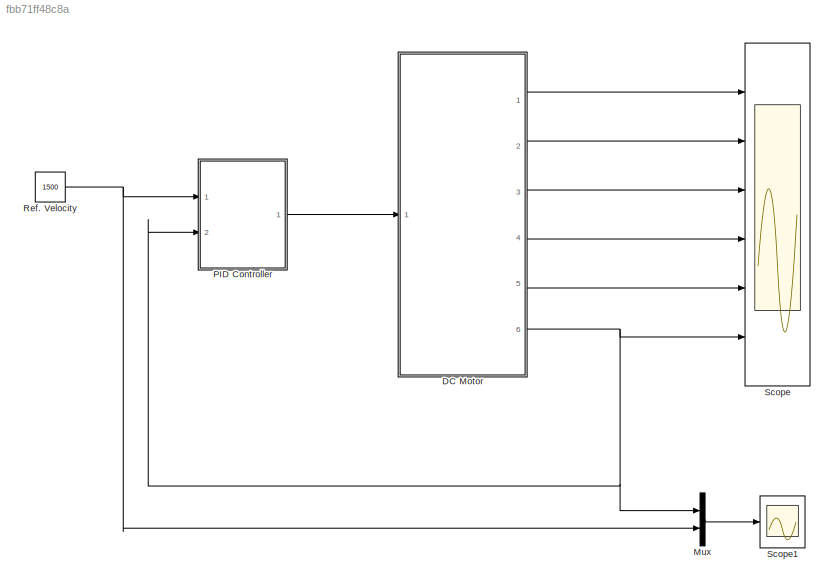
MODEL slx_fbb71ff48c8a
KIND model
CONFIG AbsTol = auto
CONFIG FixedStep = auto
CONFIG MaxStep = auto
CONFIG MinStep = auto
CONFIG RelTol = 1e-3
CONFIG SampleTimeConstraint = Unconstrained
CONFIG Solver = ode45
CONFIG SolverMode = Auto
CONFIG SolverName = ode45
CONFIG StartTime = 0.0
CONFIG StopTime = 2
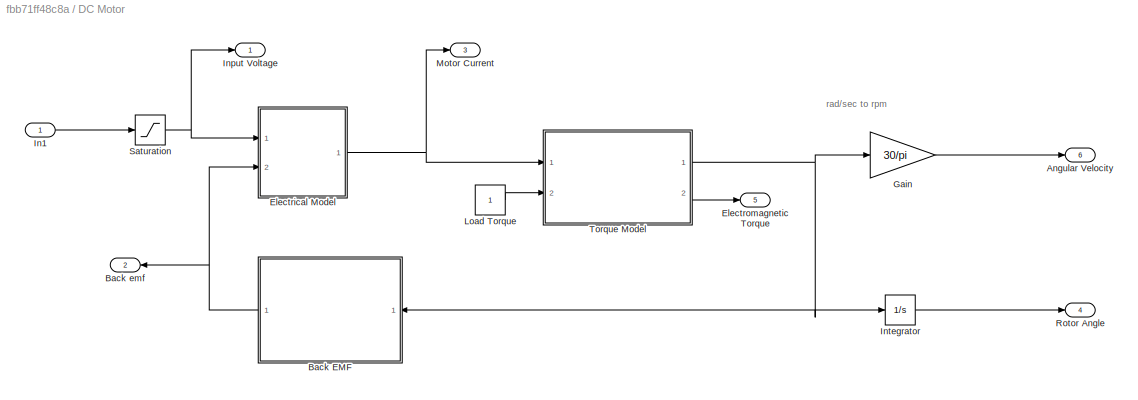
BLOCK [SubSystem] DC Motor
  Ports = [1, 6]
  RequestExecContextInheritance = off
BLOCK [Outport] DC Motor/Angular Velocity
  IconDisplay = Port number
  Port = 6
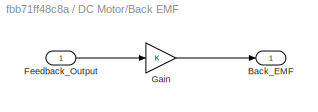
BLOCK [SubSystem] DC Motor/Back EMF
  Ports = [1, 1]
  RequestExecContextInheritance = off
BLOCK [Outport] DC Motor/Back EMF/Back_EMF
  IconDisplay = Port number
BLOCK [Inport] DC Motor/Back EMF/Feedback_Output
  IconDisplay = Port number
BLOCK [Gain] DC Motor/Back EMF/Gain
  Gain = K
  OutDataTypeStr = Inherit: Inherit via internal rule
  ParamDataTypeStr = Inherit: Inherit via internal rule
  SaturateOnIntegerOverflow = off
BLOCK [Outport] DC Motor/Back emf
  IconDisplay = Port number
  Port = 2
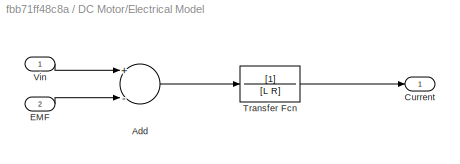
BLOCK [SubSystem] DC Motor/Electrical Model
  Ports = [2, 1]
  RequestExecContextInheritance = off
BLOCK [Sum] DC Motor/Electrical Model/Add
  InputSameDT = off
  Inputs = +-
  OutDataTypeStr = Inherit: Inherit via internal rule
  Ports = [2, 1]
  SaturateOnIntegerOverflow = off
BLOCK [Outport] DC Motor/Electrical Model/Current
  IconDisplay = Port number
BLOCK [Inport] DC Motor/Electrical Model/EMF
  IconDisplay = Port number
  Port = 2
BLOCK [TransferFcn] DC Motor/Electrical Model/Transfer Fcn
  Denominator = [L R]
BLOCK [Inport] DC Motor/Electrical Model/Vin
  IconDisplay = Port number
BLOCK [Outport] DC Motor/Electromagnetic Torque
  IconDisplay = Port number
  Port = 5
BLOCK [Gain] DC Motor/Gain
  Gain = 30/pi
  OutDataTypeStr = Inherit: Inherit via internal rule
  ParamDataTypeStr = Inherit: Inherit via internal rule
  SaturateOnIntegerOverflow = off
BLOCK [Inport] DC Motor/In1
  IconDisplay = Port number
BLOCK [Outport] DC Motor/Input Voltage
  IconDisplay = Port number
BLOCK [Integrator] DC Motor/Integrator
  Ports = [1, 1]
BLOCK [Constant] DC Motor/Load Torque
BLOCK [Outport] DC Motor/Motor Current
  IconDisplay = Port number
  Port = 3
BLOCK [Outport] DC Motor/Rotor Angle
  IconDisplay = Port number
  Port = 4
BLOCK [Saturate] DC Motor/Saturation
  InputPortMap = u0
  LowerLimit = -200
  Ports = [1, 1]
  UpperLimit = 200
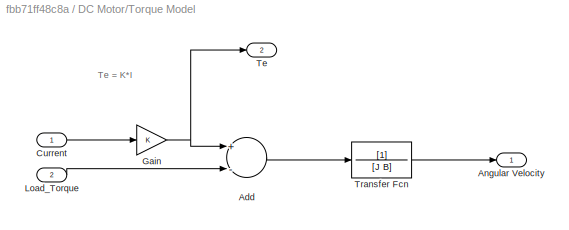
BLOCK [SubSystem] DC Motor/Torque Model
  Ports = [2, 2]
  RequestExecContextInheritance = off
BLOCK [Sum] DC Motor/Torque Model/Add
  InputSameDT = off
  Inputs = +-
  OutDataTypeStr = Inherit: Inherit via internal rule
  Ports = [2, 1]
  SaturateOnIntegerOverflow = off
BLOCK [Outport] DC Motor/Torque Model/Angular Velocity
  IconDisplay = Port number
BLOCK [Inport] DC Motor/Torque Model/Current
  IconDisplay = Port number
BLOCK [Gain] DC Motor/Torque Model/Gain
  Gain = K
  OutDataTypeStr = Inherit: Inherit via internal rule
  ParamDataTypeStr = Inherit: Inherit via internal rule
  SaturateOnIntegerOverflow = off
BLOCK [Inport] DC Motor/Torque Model/Load_Torque
  IconDisplay = Port number
  Port = 2
BLOCK [Outport] DC Motor/Torque Model/Te
  IconDisplay = Port number
  Port = 2
BLOCK [TransferFcn] DC Motor/Torque Model/Transfer Fcn
  Denominator = [J B]
BLOCK [Mux] Mux
  DisplayOption = bar
  Inputs = 2
  Ports = [2, 1]
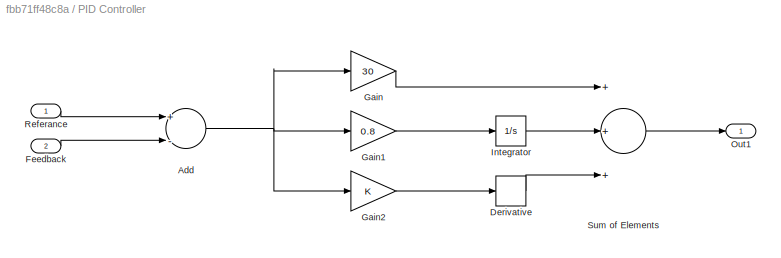
BLOCK [SubSystem] PID Controller
  Ports = [2, 1]
  RequestExecContextInheritance = off
BLOCK [Sum] PID Controller/Add
  InputSameDT = off
  Inputs = +-
  OutDataTypeStr = Inherit: Inherit via internal rule
  Ports = [2, 1]
  SaturateOnIntegerOverflow = off
BLOCK [Derivative] PID Controller/Derivative
BLOCK [Inport] PID Controller/Feedback
  IconDisplay = Port number
  Port = 2
BLOCK [Gain] PID Controller/Gain
  Gain = 30
  OutDataTypeStr = Inherit: Inherit via internal rule
  ParamDataTypeStr = Inherit: Inherit via internal rule
  SaturateOnIntegerOverflow = off
BLOCK [Gain] PID Controller/Gain1
  Gain = 0.8
  OutDataTypeStr = Inherit: Inherit via internal rule
  ParamDataTypeStr = Inherit: Inherit via internal rule
  SaturateOnIntegerOverflow = off
BLOCK [Gain] PID Controller/Gain2
  OutDataTypeStr = Inherit: Inherit via internal rule
  ParamDataTypeStr = Inherit: Inherit via internal rule
  SaturateOnIntegerOverflow = off
BLOCK [Integrator] PID Controller/Integrator
  Ports = [1, 1]
BLOCK [Outport] PID Controller/Out1
  IconDisplay = Port number
BLOCK [Inport] PID Controller/Referance
  IconDisplay = Port number
BLOCK [Sum] PID Controller/Sum of Elements
  InputSameDT = off
  Inputs = +++
  OutDataTypeStr = Inherit: Inherit via internal rule
  Ports = [3, 1]
  SaturateOnIntegerOverflow = off
BLOCK [Constant] Ref. Velocity
  Value = 1500
BLOCK [Scope] Scope
  Floating = off
  LimitDataPoints = off
  NumInputPorts = 6
  Ports = [6]
  YMax = 5~5~5~5~5~5
  YMin = -5~-5~-5~-5~-5~-5
BLOCK [Scope] Scope1
  Floating = off
  LimitDataPoints = off
  NumInputPorts = 1
  Ports = [1]
  SaveName = ScopeData1
ANNOTATION DC Motor: rad/sec to rpm
ANNOTATION DC Motor/Torque Model: Te = K*I
LINE DC Motor/Back EMF/Feedback_Output:1 -> DC Motor/Back EMF/Gain:1
LINE DC Motor/Back EMF/Gain:1 -> DC Motor/Back EMF/Back_EMF:1
NET DC Motor/Back EMF:1 -> DC Motor/Back emf:1, DC Motor/Electrical Model:2
LINE DC Motor/Electrical Model/Add:1 -> DC Motor/Electrical Model/Transfer Fcn:1
LINE DC Motor/Electrical Model/EMF:1 -> DC Motor/Electrical Model/Add:2
LINE DC Motor/Electrical Model/Transfer Fcn:1 -> DC Motor/Electrical Model/Current:1
LINE DC Motor/Electrical Model/Vin:1 -> DC Motor/Electrical Model/Add:1
NET DC Motor/Electrical Model:1 -> DC Motor/Motor Current:1, DC Motor/Torque Model:1
LINE DC Motor/Gain:1 -> DC Motor/Angular Velocity:1
LINE DC Motor/In1:1 -> DC Motor/Saturation:1
LINE DC Motor/Integrator:1 -> DC Motor/Rotor Angle:1
LINE DC Motor/Load Torque:1 -> DC Motor/Torque Model:2
NET DC Motor/Saturation:1 -> DC Motor/Electrical Model:1, DC Motor/Input Voltage:1
LINE DC Motor/Torque Model/Add:1 -> DC Motor/Torque Model/Transfer Fcn:1
LINE DC Motor/Torque Model/Current:1 -> DC Motor/Torque Model/Gain:1
NET DC Motor/Torque Model/Gain:1 -> DC Motor/Torque Model/Add:1, DC Motor/Torque Model/Te:1
LINE DC Motor/Torque Model/Load_Torque:1 -> DC Motor/Torque Model/Add:2
LINE DC Motor/Torque Model/Transfer Fcn:1 -> DC Motor/Torque Model/Angular Velocity:1
NET DC Motor/Torque Model:1 -> DC Motor/Back EMF:1, DC Motor/Gain:1, DC Motor/Integrator:1
LINE DC Motor/Torque Model:2 -> DC Motor/Electromagnetic Torque:1
LINE DC Motor:1 -> Scope:1
LINE DC Motor:2 -> Scope:2
LINE DC Motor:3 -> Scope:3
LINE DC Motor:4 -> Scope:4
LINE DC Motor:5 -> Scope:5
NET DC Motor:6 -> Mux:1, PID Controller:2, Scope:6
LINE Mux:1 -> Scope1:1
NET PID Controller/Add:1 -> PID Controller/Gain1:1, PID Controller/Gain2:1, PID Controller/Gain:1
LINE PID Controller/Derivative:1 -> PID Controller/Sum of Elements:3
LINE PID Controller/Feedback:1 -> PID Controller/Add:2
LINE PID Controller/Gain1:1 -> PID Controller/Integrator:1
LINE PID Controller/Gain2:1 -> PID Controller/Derivative:1
LINE PID Controller/Gain:1 -> PID Controller/Sum of Elements:1
LINE PID Controller/Integrator:1 -> PID Controller/Sum of Elements:2
LINE PID Controller/Referance:1 -> PID Controller/Add:1
LINE PID Controller/Sum of Elements:1 -> PID Controller/Out1:1
LINE PID Controller:1 -> DC Motor:1
NET Ref. Velocity:1 -> Mux:2, PID Controller:1
note: NET lines group one-source signal fan-out (src -> all destinations, sorted); 1:1 wires keep LINE
